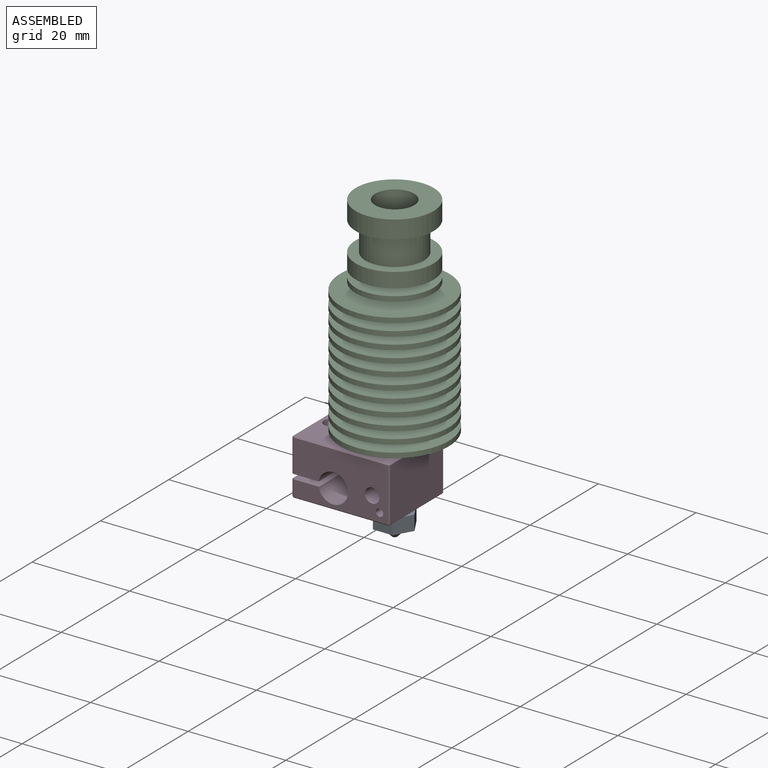
[diagram: assembled view]
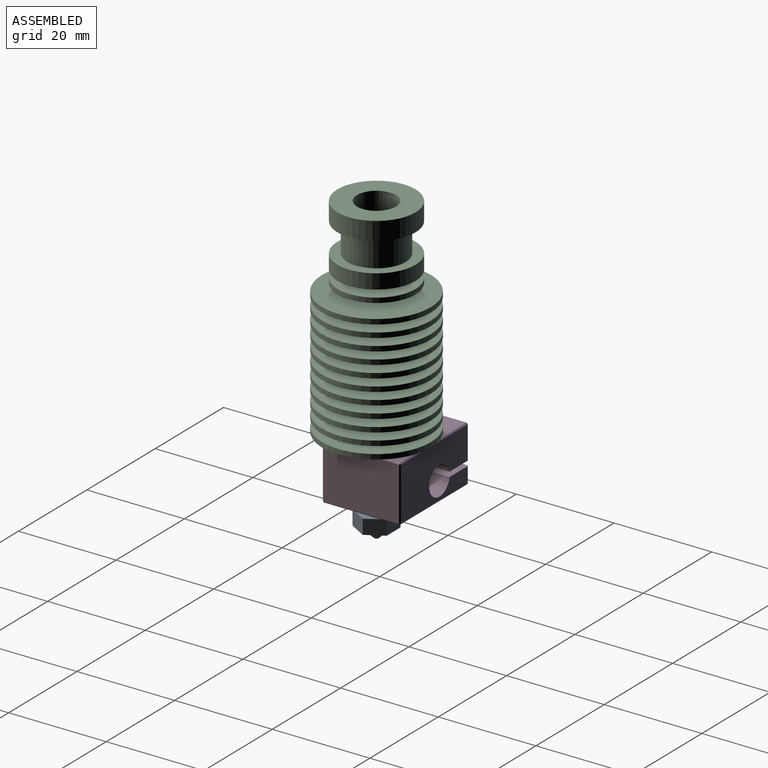
[diagram: assembled view, second angle]
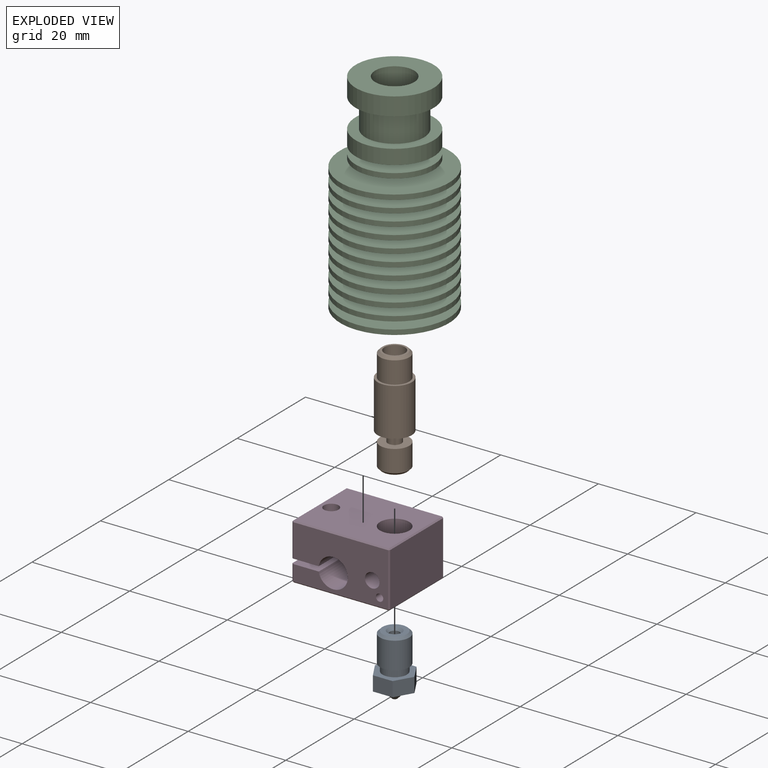
[diagram: exploded view]
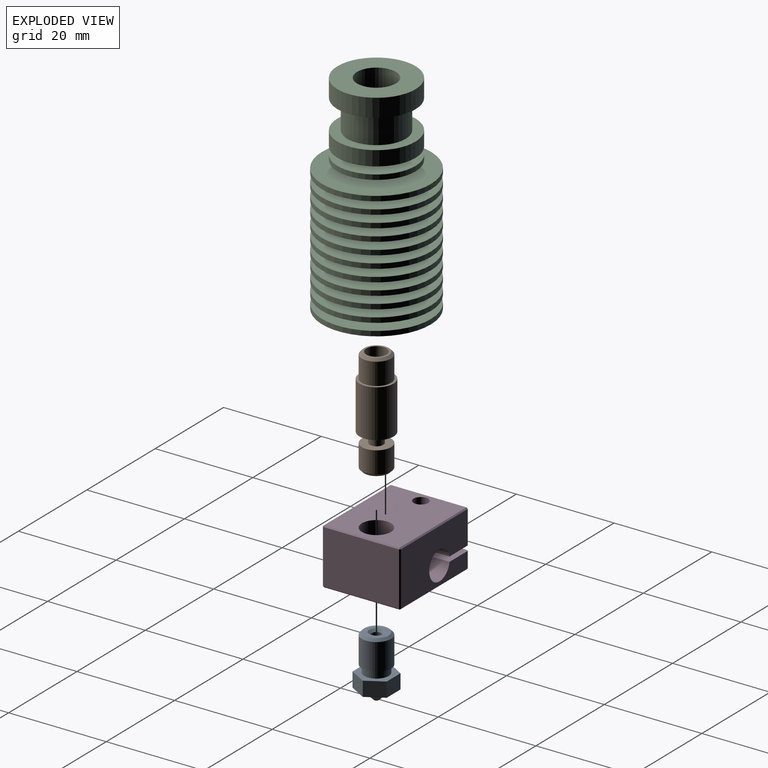
[diagram: exploded view, second angle]
ASSEMBLY  parts=4 mates=3
PART A: 21 faces, bbox 8.1x7x12.5 mm
  f0: cone r=0.75mm half-angle=47.7deg, axis (0,0,1), area 1.9mm2, adj f1,f8
  f1: cylinder r=0.75mm len=1.5mm, axis (0,0,1), area 2.2mm2, adj f0,f2
  f2: cone r=0.2mm half-angle=47.7deg, axis (0,0,1), area 2.2mm2, adj f1,f9
  f3: cone r=2.5mm half-angle=45deg, axis (0,0,-1), area 12.2mm2, adj f6,f18
  f4: cone r=0.5mm half-angle=45deg, axis (0,0,1), area 26.7mm2, adj f10,f20
  f5: cylinder r=2.5mm len=5mm, axis (0,0,1), area 23.6mm2, adj f11,f19
  f6: cylinder r=3mm len=6mm, axis (0,0,1), area 103.7mm2, adj f3,f19
  f7: cone r=1.5mm half-angle=45deg, axis (0,0,1), area 5.6mm2, adj f8,f18
  f8: cylinder r=1mm len=10mm, axis (0,0,-1), area 62.8mm2, adj f0,f7
  f9: cylinder r=0.2mm len=0.8mm, axis (0,0,1), area 1mm2, adj f2,f20
  f10: plane 8.08x7mm, normal (0,0,-1), area 22.8mm2, adj f4,f12,f13,f14,f15,f16,f17
  f11: plane 8.08x7mm, normal (0,0,1), area 22.8mm2, adj f5,f12,f13,f14,f15,f16,f17
  f12: plane 4.04x3mm, normal (0,-1,0), area 12.1mm2, adj f10,f11,f13,f17
  f13: plane 3.5x3mm, normal (0.87,-0.5,0), area 12.1mm2, adj f10,f11,f12,f14
  f14: plane 3.5x3mm, normal (0.87,0.5,0), area 12.1mm2, adj f10,f11,f13,f15
  f15: plane 4.04x3mm, normal (0,1,0), area 12.1mm2, adj f10,f11,f14,f16
  f16: plane 3.5x3mm, normal (-0.87,0.5,0), area 12.1mm2, adj f10,f11,f15,f17
  f17: plane 3.5x3mm, normal (-0.87,-0.5,0), area 12.1mm2, adj f10,f11,f12,f16
  f18: plane 5x5mm, normal (0,0,1), area 12.6mm2, adj f3,f7
  f19: plane 6x6mm, normal (0,0,-1), area 8.6mm2, adj f5,f6
  f20: plane 1x1mm, normal (0,0,-1), area 0.7mm2, adj f4,f9
PART B: 14 faces, bbox 7x7x21.9 mm
  f0: cone r=2.5mm half-angle=45deg, axis (0,0,-1), area 12.2mm2, adj f5,f9
  f1: cone r=3mm half-angle=45deg, axis (0,0,1), area 12.2mm2, adj f2,f13
  f2: cylinder r=3mm len=6mm, axis (0,0,1), area 84.8mm2, adj f1,f12
  f3: cylinder r=1.4mm len=2.8mm, axis (0,0,1), area 18.5mm2, adj f11,f12
  f4: cylinder r=3.5mm len=9.8mm, axis (0,0,1), area 215.5mm2, adj f10,f11
  f5: cylinder r=3mm len=6mm, axis (0,0,1), area 84.8mm2, adj f0,f10
  f6: cylinder r=2.1mm len=5mm, axis (0,0,1), area 66mm2, adj f7,f9
  f7: cone r=2.1mm half-angle=45deg, axis (0,0,1), area 15.2mm2, adj f6,f8
  f8: cylinder r=1mm len=15.8mm, axis (0,0,1), area 99.3mm2, adj f7,f13
  f9: plane 5x5mm, normal (0,0,1), area 5.8mm2, adj f0,f6
  f10: plane 7x7mm, normal (0,0,1), area 10.2mm2, adj f4,f5
  f11: plane 7x7mm, normal (0,0,-1), area 32.3mm2, adj f3,f4
  f12: plane 6x6mm, normal (0,0,1), area 22.1mm2, adj f2,f3
  f13: plane 5x5mm, normal (0,0,-1), area 16.5mm2, adj f1,f8
PART C: 60 faces, bbox 22.3x22.3x42.7 mm
  f0: cone r=2mm half-angle=45deg, axis (0,0,-1), area 34.8mm2, adj f1,f31
  f1: cylinder r=3.5mm len=13.3mm, axis (0,0,-1), area 292.5mm2, adj f0,f32
  f2: cone r=4mm half-angle=45deg, axis (0,0,1), area 51.5mm2, adj f3,f31
  f3: cylinder r=4mm len=8mm, axis (0,0,-1), area 153.3mm2, adj f2,f59
  f4: cylinder r=8mm len=16mm, axis (0,0,-1), area 186mm2, adj f58,f59
  f5: cylinder r=6mm len=12mm, axis (0,0,-1), area 226.2mm2, adj f57,f58
  f6: cylinder r=8mm len=16mm, axis (0,0,-1), area 150.8mm2, adj f56,f57
  f7: cylinder r=4.69mm len=9.38mm, axis (0,0,-1), area 44.2mm2, adj f55,f56
  f8: cylinder r=8mm len=16mm, axis (0,0,-1), area 50.3mm2, adj f54,f55
  f9: cylinder r=4.69mm len=9.38mm, axis (0,0,-1), area 44.2mm2, adj f53,f54
  f10: cylinder r=11.15mm len=22.3mm, axis (0,0,-1), area 70.1mm2, adj f52,f53
  f11: cylinder r=4.82mm len=9.64mm, axis (0,0,-1), area 45.4mm2, adj f51,f52
  f12: cylinder r=11.15mm len=22.3mm, axis (0,0,-1), area 70.1mm2, adj f50,f51
  f13: cylinder r=4.95mm len=9.9mm, axis (0,0,-1), area 46.7mm2, adj f49,f50
  f14: cylinder r=11.15mm len=22.3mm, axis (0,0,-1), area 70.1mm2, adj f48,f49
  f15: cylinder r=5.08mm len=10.17mm, axis (0,0,-1), area 47.9mm2, adj f47,f48
  f16: cylinder r=11.15mm len=22.3mm, axis (0,0,-1), area 70.1mm2, adj f46,f47
  f17: cylinder r=5.21mm len=10.43mm, axis (0,0,-1), area 49.1mm2, adj f45,f46
  f18: cylinder r=11.15mm len=22.3mm, axis (0,0,-1), area 70.1mm2, adj f44,f45
  f19: cylinder r=5.34mm len=10.69mm, axis (0,0,-1), area 50.4mm2, adj f43,f44
  f20: cylinder r=11.15mm len=22.3mm, axis (0,0,-1), area 70.1mm2, adj f42,f43
  f21: cylinder r=5.48mm len=10.95mm, axis (0,0,-1), area 51.6mm2, adj f41,f42
  f22: cylinder r=11.15mm len=22.3mm, axis (0,0,-1), area 70.1mm2, adj f40,f41
  f23: cylinder r=5.61mm len=11.21mm, axis (0,0,-1), area 52.8mm2, adj f39,f40
  f24: cylinder r=11.15mm len=22.3mm, axis (0,0,-1), area 70.1mm2, adj f38,f39
  f25: cylinder r=5.74mm len=11.48mm, axis (0,0,-1), area 54.1mm2, adj f37,f38
  f26: cylinder r=11.15mm len=22.3mm, axis (0,0,-1), area 70.1mm2, adj f36,f37
  f27: cylinder r=5.87mm len=11.74mm, axis (0,0,-1), area 55.3mm2, adj f35,f36
  f28: cylinder r=11.15mm len=22.3mm, axis (0,0,-1), area 70.1mm2, adj f34,f35
  f29: cylinder r=6mm len=12mm, axis (0,0,-1), area 56.5mm2, adj f33,f34
  f30: cylinder r=11.15mm len=22.3mm, axis (0,0,-1), area 70.1mm2, adj f32,f33
  f31: cylinder r=2.1mm len=20mm, axis (0,0,1), area 263.9mm2, adj f0,f2
  f32: plane 22.3x22.3mm, normal (0,0,-1), area 352.1mm2, adj f1,f30
  f33: plane 22.3x22.3mm, normal (0,0,1), area 277.5mm2, adj f29,f30
  f34: plane 22.3x22.3mm, normal (0,0,-1), area 277.5mm2, adj f28,f29
  f35: plane 22.3x22.3mm, normal (0,0,1), area 282.4mm2, adj f27,f28
  f36: plane 22.3x22.3mm, normal (0,0,-1), area 282.4mm2, adj f26,f27
  f37: plane 22.3x22.3mm, normal (0,0,1), area 287.1mm2, adj f25,f26
  f38: plane 22.3x22.3mm, normal (0,0,-1), area 287.1mm2, adj f24,f25
  f39: plane 22.3x22.3mm, normal (0,0,1), area 291.8mm2, adj f23,f24
  f40: plane 22.3x22.3mm, normal (0,0,-1), area 291.8mm2, adj f22,f23
  f41: plane 22.3x22.3mm, normal (0,0,1), area 296.4mm2, adj f21,f22
  f42: plane 22.3x22.3mm, normal (0,0,-1), area 296.4mm2, adj f20,f21
  f43: plane 22.3x22.3mm, normal (0,0,1), area 300.8mm2, adj f19,f20
  f44: plane 22.3x22.3mm, normal (0,0,-1), area 300.8mm2, adj f18,f19
  f45: plane 22.3x22.3mm, normal (0,0,1), area 305.2mm2, adj f17,f18
  f46: plane 22.3x22.3mm, normal (0,0,-1), area 305.2mm2, adj f16,f17
  f47: plane 22.3x22.3mm, normal (0,0,1), area 309.4mm2, adj f15,f16
  f48: plane 22.3x22.3mm, normal (0,0,-1), area 309.4mm2, adj f14,f15
  f49: plane 22.3x22.3mm, normal (0,0,1), area 313.5mm2, adj f13,f14
  f50: plane 22.3x22.3mm, normal (0,0,-1), area 313.5mm2, adj f12,f13
  f51: plane 22.3x22.3mm, normal (0,0,1), area 317.6mm2, adj f11,f12
  f52: plane 22.3x22.3mm, normal (0,0,-1), area 317.6mm2, adj f10,f11
  f53: plane 22.3x22.3mm, normal (0,0,1), area 321.5mm2, adj f9,f10
  f54: plane 16x16mm, normal (0,0,-1), area 132mm2, adj f8,f9
  f55: plane 16x16mm, normal (0,0,1), area 132mm2, adj f7,f8
  f56: plane 16x16mm, normal (0,0,-1), area 132mm2, adj f6,f7
  f57: plane 16x16mm, normal (0,0,1), area 88mm2, adj f5,f6
  f58: plane 16x16mm, normal (0,0,-1), area 88mm2, adj f4,f5
  f59: plane 16x16mm, normal (0,0,1), area 150.8mm2, adj f3,f4
PART D: 39 faces, bbox 20x16x11.5 mm
  f0: cylinder r=3mm len=11.5mm, axis (0,0,1), area 216.8mm2, adj f11,f12
  f1: cylinder r=1.5mm len=3.5mm, axis (0,0,1), area 33mm2, adj f12,f13
  f2: cylinder r=1.5mm len=7mm, axis (0,0,1), area 66mm2, adj f11,f14
  f3: cylinder r=0.75mm len=4.5mm, axis (0,-1,0), area 21.2mm2, adj f8,f16
  f4: cylinder r=1.5mm len=3.5mm, axis (0,-1,0), area 33mm2, adj f8,f15
  f5: cylinder r=3mm len=16mm, axis (0,-1,0), area 285.5mm2, adj f8,f10,f13,f14
  f6: plane 15.5x3.25mm, normal (-1,0,0), area 50.4mm2, adj f13,f18,f26,f27
  f7: plane 15.5x6.75mm, normal (-1,0,0), area 104.6mm2, adj f14,f17,f21,f22
  f8: plane 19.5x11mm, normal (0,-1,0), area 172.1mm2, adj f3,f4,f5,f13,f14,f21,f27,f32
  f9: plane 15.5x11mm, normal (1,0,0), area 170.5mm2, adj f24,f33,f34,f38
  f10: plane 19.5x11mm, normal (0,1,0), area 181mm2, adj f5,f13,f14,f17,f18,f23,f24,f25
  f11: plane 19.5x15.5mm, normal (0,0,1), area 266.9mm2, adj f0,f2,f22,f23,f32,f33
  f12: plane 19.5x15.5mm, normal (0,0,-1), area 266.9mm2, adj f0,f1,f25,f26,f34,f35
  f13: plane 16x5.54mm, normal (0,0,1), area 81.5mm2, adj f1,f5,f6,f8,f10,f18,f27
  f14: plane 16x5.54mm, normal (0,0,-1), area 81.5mm2, adj f2,f5,f7,f8,f10,f17,f21
  f15: plane 3x3mm, normal (0,-1,0), area 7.1mm2, adj f4
  f16: plane 1.5x1.5mm, normal (0,-1,0), area 1.8mm2, adj f3
  f17: plane 6.75x0.25mm, normal (-0.71,0.71,0), area 2.4mm2, adj f7,f10,f14,f19
  f18: plane 3.25x0.25mm, normal (-0.71,0.71,0), area 1.1mm2, adj f6,f10,f13,f20
  f19: plane 0.25x0.25mm, normal (-0.58,0.58,0.58), area 0.1mm2, adj f17,f22,f23
  f20: plane 0.25x0.25mm, normal (-0.58,0.58,-0.58), area 0.1mm2, adj f18,f25,f26
  f21: plane 6.75x0.25mm, normal (-0.71,-0.71,0), area 2.4mm2, adj f7,f8,f14,f28
  f22: plane 15.5x0.25mm, normal (-0.71,0,0.71), area 5.5mm2, adj f7,f11,f19,f28
  f23: plane 19.5x0.25mm, normal (0,0.71,0.71), area 6.9mm2, adj f10,f11,f19,f29
  f24: plane 11x0.25mm, normal (0.71,0.71,0), area 3.9mm2, adj f9,f10,f29,f30
  f25: plane 19.5x0.25mm, normal (0,0.71,-0.71), area 6.9mm2, adj f10,f12,f20,f30
  f26: plane 15.5x0.25mm, normal (-0.71,0,-0.71), area 5.5mm2, adj f6,f12,f20,f31
  f27: plane 3.25x0.25mm, normal (-0.71,-0.71,0), area 1.1mm2, adj f6,f8,f13,f31
  f28: plane 0.25x0.25mm, normal (-0.58,-0.58,0.58), area 0.1mm2, adj f21,f22,f32
  f29: plane 0.25x0.25mm, normal (0.58,0.58,0.58), area 0.1mm2, adj f23,f24,f33
  f30: plane 0.25x0.25mm, normal (0.58,0.58,-0.58), area 0.1mm2, adj f24,f25,f34
  f31: plane 0.25x0.25mm, normal (-0.58,-0.58,-0.58), area 0.1mm2, adj f26,f27,f35
  f32: plane 19.5x0.25mm, normal (0,-0.71,0.71), area 6.9mm2, adj f8,f11,f28,f36
  f33: plane 15.5x0.25mm, normal (0.71,0,0.71), area 5.5mm2, adj f9,f11,f29,f36
  f34: plane 15.5x0.25mm, normal (0.71,0,-0.71), area 5.5mm2, adj f9,f12,f30,f37
  f35: plane 19.5x0.25mm, normal (0,-0.71,-0.71), area 6.9mm2, adj f8,f12,f31,f37
  f36: plane 0.25x0.25mm, normal (0.58,-0.58,0.58), area 0.1mm2, adj f32,f33,f38
  f37: plane 0.25x0.25mm, normal (0.58,-0.58,-0.58), area 0.1mm2, adj f34,f35,f38
  f38: plane 11x0.25mm, normal (0.71,-0.71,0), area 3.9mm2, adj f8,f9,f36,f37
PLACE A t=(2.11,-31.16,0.04)mm fixed
PLACE B t=(2.11,-31.16,0.04)mm
PLACE C t=(2.11,-31.16,0.04)mm
PLACE D t=(2.11,-31.16,0.04)mm
MATE fastened B.f2 <-> A.f3  axis (0,0,-1) through (2.11,-31.16,12.54)mm
MATE fastened D.f0 <-> B.f1  axis (0,0,1) through (2.11,-31.16,17.54)mm
MATE fastened C.f3 <-> B.f1  axis (0,0,-1) through (2.11,-31.16,19.64)mm
